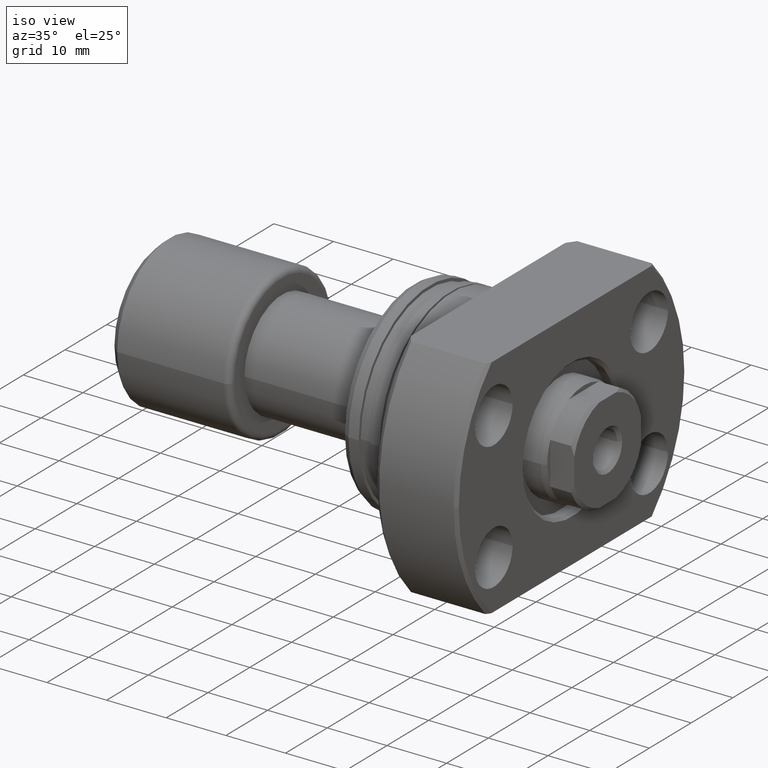
[diagram: clean part render]
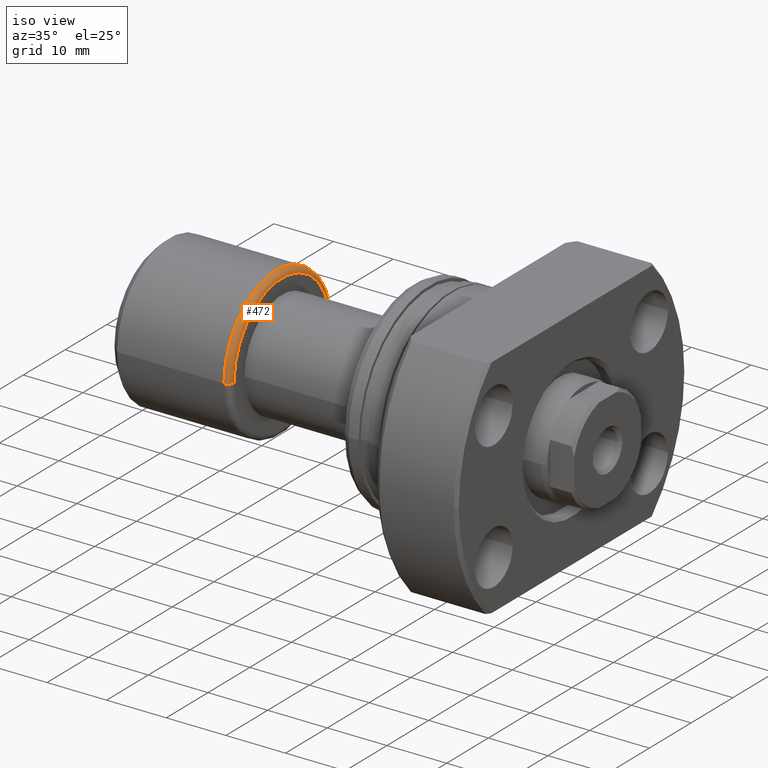
[diagram: same view with one face highlighted and labeled with its STEP entity id]
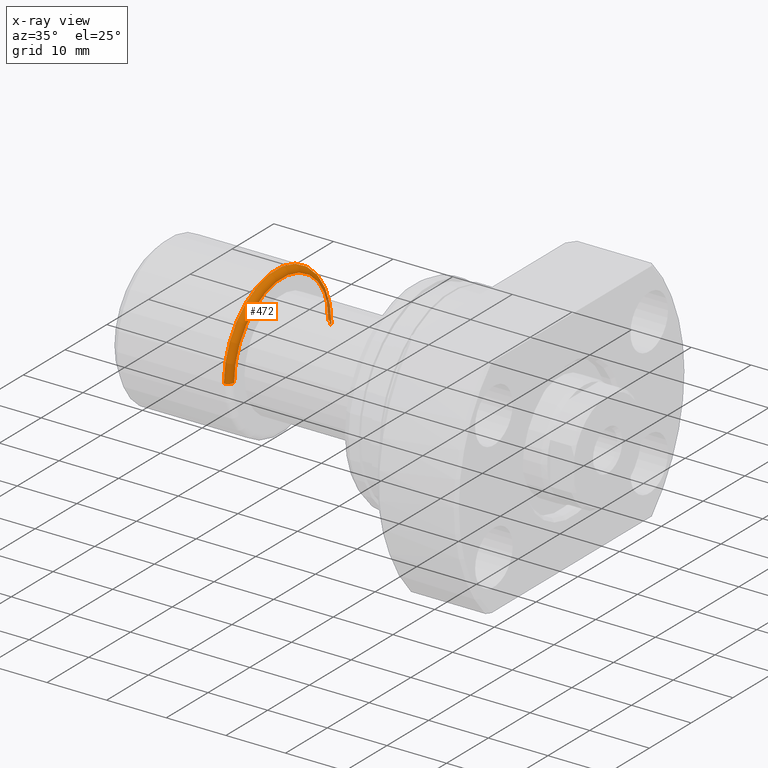
[diagram: x-ray of the same camera — body ghosted, the highlighted face saturated]
A machine part, iso view. The second image highlights one B-rep face of the part: STEP entity #472.
The next image is the same camera in x-ray: the body ghosted, the highlighted face saturated — about 4% of this face is hidden behind the body in this view.
In plain terms, the highlighted toroidal blend (fillet) surface has major radius 11.5 mm and minor (blend) radius 1 mm.
Its self-contained STEP definition (entity closure, byte-faithful):
#54 = DIRECTION ( 'NONE',  ( 0.000000000000000000, -1.000000000000000000, 0.000000000000000000 ) ) ;
#144 = EDGE_CURVE ( 'NONE', #3195, #568, #1952, .T. ) ;
#162 = DIRECTION ( 'NONE',  ( -1.000000000000000000, 0.000000000000000000, 0.000000000000000000 ) ) ;
#194 = DIRECTION ( 'NONE',  ( -1.000000000000000000, -1.069542322069065801E-17, -0.000000000000000000 ) ) ;
#258 = CIRCLE ( 'NONE', #1234, 1.000000000000000888 ) ;
#387 = CARTESIAN_POINT ( 'NONE',  ( 20.39999999999999858, 11.50000000000000000, 1.469576158976823947E-15 ) ) ;
#406 = DIRECTION ( 'NONE',  ( 0.000000000000000000, 0.000000000000000000, -1.000000000000000000 ) ) ;
#446 = DIRECTION ( 'NONE',  ( 0.000000000000000000, -1.000000000000000000, -1.224646799147353454E-16 ) ) ;
#472 = ADVANCED_FACE ( 'NONE', ( #3054 ), #2164, .T. ) ;
#507 = ORIENTED_EDGE ( 'NONE', *, *, #144, .T. ) ;
#568 = VERTEX_POINT ( 'NONE', #1619 ) ;
#634 = VERTEX_POINT ( 'NONE', #3151 ) ;
#696 = EDGE_CURVE ( 'NONE', #634, #568, #1900, .T. ) ;
#750 = ORIENTED_EDGE ( 'NONE', *, *, #696, .F. ) ;
#855 = AXIS2_PLACEMENT_3D ( 'NONE', #1068, #1356, #1556 ) ;
#998 = CARTESIAN_POINT ( 'NONE',  ( 20.39999999999999858, -11.50000000000000000, 0.000000000000000000 ) ) ;
#1009 = AXIS2_PLACEMENT_3D ( 'NONE', #1191, #2681, #446 ) ;
#1068 = CARTESIAN_POINT ( 'NONE',  ( 19.39999999999999858, 0.000000000000000000, 0.000000000000000000 ) ) ;
#1191 = CARTESIAN_POINT ( 'NONE',  ( 19.39999999999999858, 11.50000000000000000, 1.408343819019456176E-15 ) ) ;
#1234 = AXIS2_PLACEMENT_3D ( 'NONE', #2405, #406, #162 ) ;
#1352 = DIRECTION ( 'NONE',  ( 0.000000000000000000, -1.000000000000000000, 0.000000000000000000 ) ) ;
#1356 = DIRECTION ( 'NONE',  ( -1.000000000000000000, -1.069542322069065801E-17, -0.000000000000000000 ) ) ;
#1388 = VERTEX_POINT ( 'NONE', #998 ) ;
#1400 = EDGE_LOOP ( 'NONE', ( #2193, #507, #750, #2797 ) ) ;
#1556 = DIRECTION ( 'NONE',  ( 1.069542322069065955E-17, -1.000000000000000000, 0.000000000000000000 ) ) ;
#1619 = CARTESIAN_POINT ( 'NONE',  ( 19.40000000000000213, 12.50000000000000000, 1.530808498934191521E-15 ) ) ;
#1900 = CIRCLE ( 'NONE', #2636, 12.50000000000000000 ) ;
#1952 = CIRCLE ( 'NONE', #1009, 1.000000000000000888 ) ;
#1973 = CIRCLE ( 'NONE', #2331, 11.50000000000000000 ) ;
#1993 = EDGE_CURVE ( 'NONE', #1388, #634, #258, .T. ) ;
#2098 = EDGE_CURVE ( 'NONE', #1388, #3195, #1973, .T. ) ;
#2164 = TOROIDAL_SURFACE ( 'NONE', #855, 11.50000000000000000, 1.000000000000000888 ) ;
#2193 = ORIENTED_EDGE ( 'NONE', *, *, #2098, .T. ) ;
#2331 = AXIS2_PLACEMENT_3D ( 'NONE', #2421, #194, #54 ) ;
#2405 = CARTESIAN_POINT ( 'NONE',  ( 19.39999999999999858, -11.50000000000000000, 0.000000000000000000 ) ) ;
#2421 = CARTESIAN_POINT ( 'NONE',  ( 20.39999999999999858, 2.181866337020894116E-16, 0.000000000000000000 ) ) ;
#2636 = AXIS2_PLACEMENT_3D ( 'NONE', #3067, #2849, #1352 ) ;
#2681 = DIRECTION ( 'NONE',  ( 1.309811581274509052E-33, -1.224646799147353207E-16, 1.000000000000000000 ) ) ;
#2797 = ORIENTED_EDGE ( 'NONE', *, *, #1993, .F. ) ;
#2849 = DIRECTION ( 'NONE',  ( -1.000000000000000000, -1.069542322069065801E-17, -0.000000000000000000 ) ) ;
#3054 = FACE_OUTER_BOUND ( 'NONE', #1400, .T. ) ;
#3067 = CARTESIAN_POINT ( 'NONE',  ( 19.40000000000000213, 2.074912104813987675E-16, 0.000000000000000000 ) ) ;
#3151 = CARTESIAN_POINT ( 'NONE',  ( 19.40000000000000213, -12.50000000000000000, 0.000000000000000000 ) ) ;
#3195 = VERTEX_POINT ( 'NONE', #387 ) ;